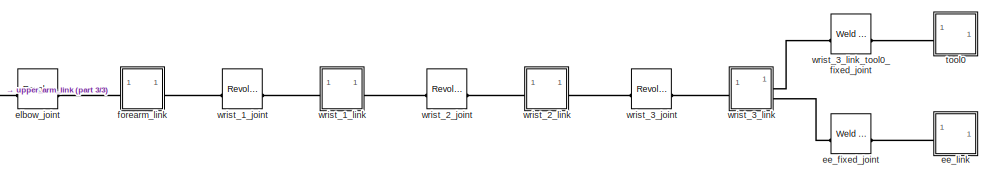
[diagram: root canvas - part 1/3, top center region]
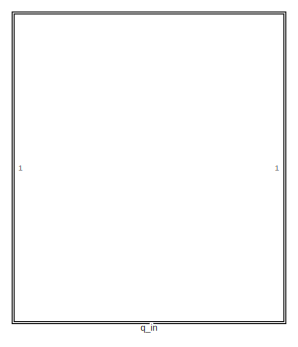
[diagram: root canvas - part 2/3, right side, full height]
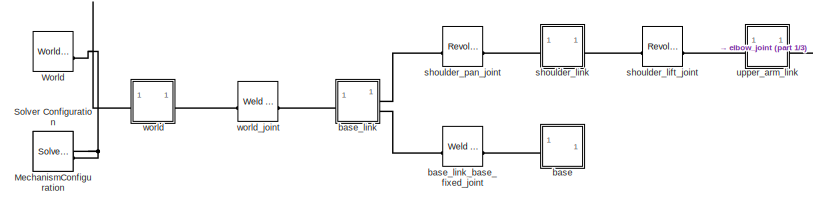
[diagram: root canvas - part 3/3, middle left region]
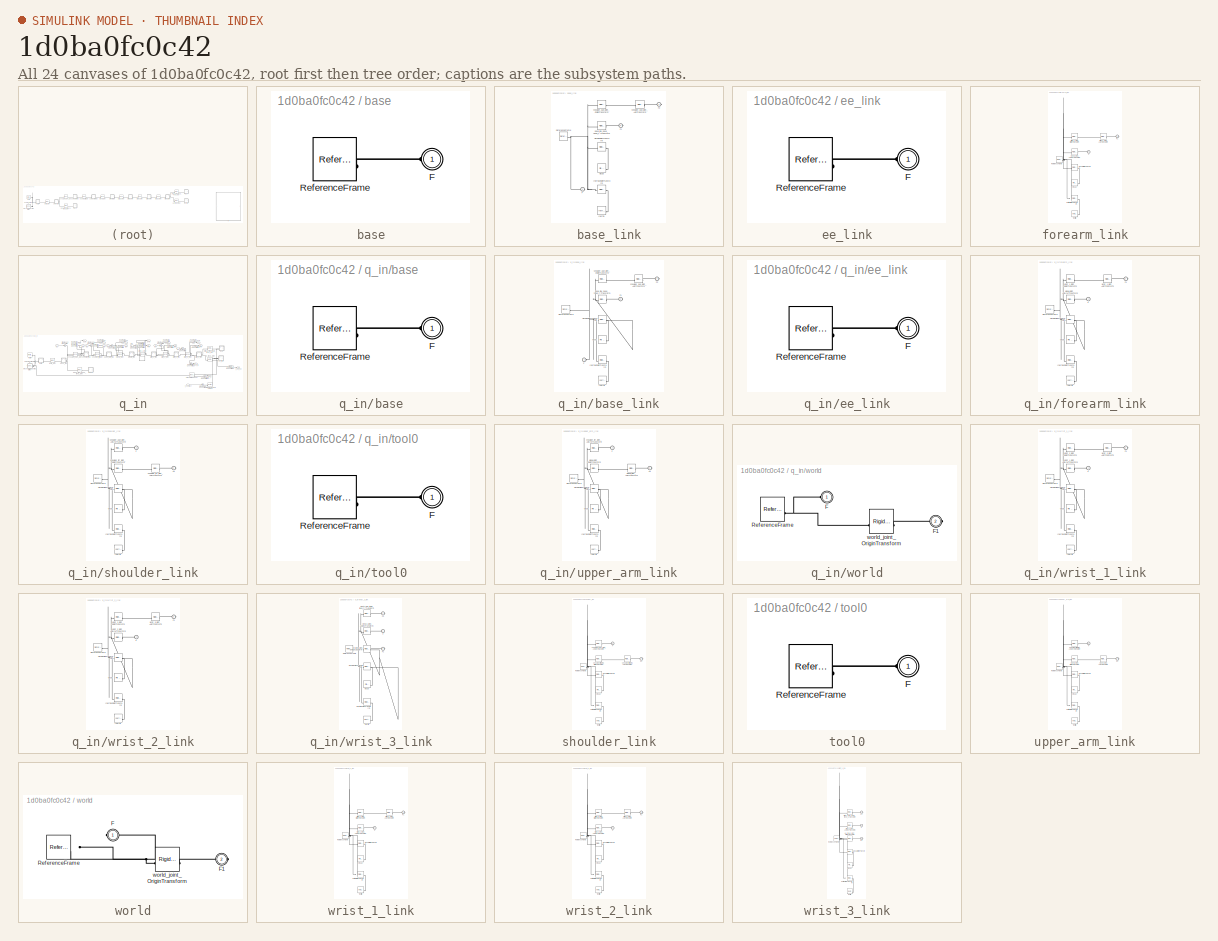
[diagram: thumbnail index - all 24 canvases of the model, root first then tree order]
MODEL slx_1d0ba0fc0c42
KIND model
CONFIG AbsTol = auto
CONFIG EnableMultiTasking = off
CONFIG FixedStep = auto
CONFIG MaxStep = auto
CONFIG MinStep = auto
CONFIG RelTol = 1e-3
CONFIG SampleTimeConstraint = Unconstrained
CONFIG SolverName = VariableStepAuto
CONFIG StartTime = 0.0
CONFIG StopTime = 10.0
BLOCK [Reference] MechanismConfiguration  REF=sm_lib/Utilities/Mechanism
Configuration
  SourceBlock = sm_lib/Utilities/Mechanism\nConfiguration
  SourceType = Mechanism\nConfiguration
BLOCK [Reference] Solver Configuration  REF=nesl_utility/Solver
Configuration
  SourceBlock = nesl_utility/Solver\nConfiguration
  SourceType = Solver\nConfiguration
BLOCK [Reference] World  REF=sm_lib/Frames and
Transforms/World Frame
  SourceBlock = sm_lib/Frames and\nTransforms/World Frame
  SourceType = World Frame
BLOCK [SubSystem] base
BLOCK [PMIOPort] base/F
  Side = Left
BLOCK [Reference] base/ReferenceFrame  REF=sm_lib/Frames and
Transforms/Reference
Frame
  SourceBlock = sm_lib/Frames and\nTransforms/Reference\nFrame
  SourceType = Reference\nFrame
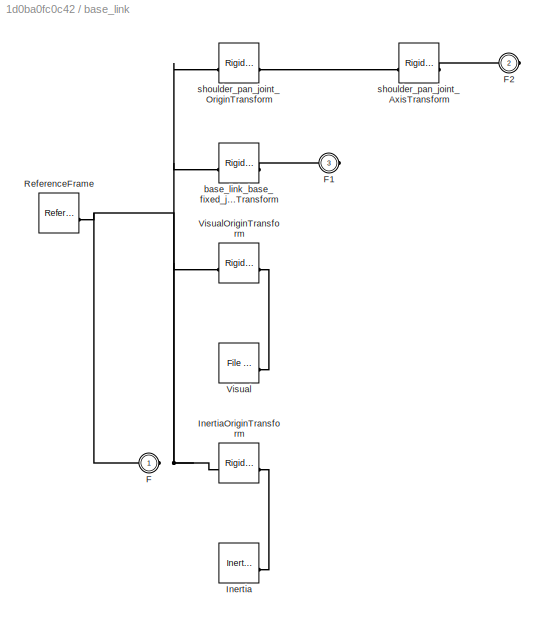
BLOCK [SubSystem] base_link
BLOCK [PMIOPort] base_link/F
  Side = Left
BLOCK [PMIOPort] base_link/F1
  Port = 3
  Side = Right
BLOCK [PMIOPort] base_link/F2
  Port = 2
  Side = Right
BLOCK [Reference] base_link/Inertia  REF=sm_lib/Body Elements/Inertia
  SourceBlock = sm_lib/Body Elements/Inertia
  SourceType = Inertia
BLOCK [Reference] base_link/InertiaOriginTransform  REF=sm_lib/Frames and
Transforms/Rigid
Transform
  SourceBlock = sm_lib/Frames and\nTransforms/Rigid\nTransform
  SourceType = Rigid\nTransform
BLOCK [Reference] base_link/ReferenceFrame  REF=sm_lib/Frames and
Transforms/Reference
Frame
  SourceBlock = sm_lib/Frames and\nTransforms/Reference\nFrame
  SourceType = Reference\nFrame
BLOCK [Reference] base_link/Visual  REF=sm_lib/Body Elements/File Solid
  SourceBlock = sm_lib/Body Elements/File Solid
  SourceType = File Solid
BLOCK [Reference] base_link/VisualOriginTransform  REF=sm_lib/Frames and
Transforms/Rigid
Transform
  SourceBlock = sm_lib/Frames and\nTransforms/Rigid\nTransform
  SourceType = Rigid\nTransform
BLOCK [Reference] base_link/base_link_base_fixed_joint_OriginTransform  REF=sm_lib/Frames and
Transforms/Rigid
Transform
  SourceBlock = sm_lib/Frames and\nTransforms/Rigid\nTransform
  SourceType = Rigid\nTransform
BLOCK [Reference] base_link/shoulder_pan_joint_AxisTransform  REF=sm_lib/Frames and
Transforms/Rigid
Transform
  SourceBlock = sm_lib/Frames and\nTransforms/Rigid\nTransform
  SourceType = Rigid\nTransform
BLOCK [Reference] base_link/shoulder_pan_joint_OriginTransform  REF=sm_lib/Frames and
Transforms/Rigid
Transform
  SourceBlock = sm_lib/Frames and\nTransforms/Rigid\nTransform
  SourceType = Rigid\nTransform
BLOCK [Reference] base_link_base_fixed_joint  REF=sm_lib/Joints/Weld Joint
  SourceBlock = sm_lib/Joints/Weld Joint
  SourceType = Weld Joint
BLOCK [Reference] ee_fixed_joint  REF=sm_lib/Joints/Weld Joint
  SourceBlock = sm_lib/Joints/Weld Joint
  SourceType = Weld Joint
BLOCK [SubSystem] ee_link
BLOCK [PMIOPort] ee_link/F
  Side = Left
BLOCK [Reference] ee_link/ReferenceFrame  REF=sm_lib/Frames and
Transforms/Reference
Frame
  SourceBlock = sm_lib/Frames and\nTransforms/Reference\nFrame
  SourceType = Reference\nFrame
BLOCK [Reference] elbow_joint  REF=sm_lib/Joints/Revolute Joint
  SourceBlock = sm_lib/Joints/Revolute Joint
  SourceType = Revolute Joint
BLOCK [SubSystem] forearm_link
BLOCK [PMIOPort] forearm_link/F
  Side = Left
BLOCK [PMIOPort] forearm_link/F1
  Port = 2
  Side = Right
BLOCK [Reference] forearm_link/Inertia  REF=sm_lib/Body Elements/Inertia
  SourceBlock = sm_lib/Body Elements/Inertia
  SourceType = Inertia
BLOCK [Reference] forearm_link/InertiaOriginTransform  REF=sm_lib/Frames and
Transforms/Rigid
Transform
  SourceBlock = sm_lib/Frames and\nTransforms/Rigid\nTransform
  SourceType = Rigid\nTransform
BLOCK [Reference] forearm_link/ReferenceFrame  REF=sm_lib/Frames and
Transforms/Reference
Frame
  SourceBlock = sm_lib/Frames and\nTransforms/Reference\nFrame
  SourceType = Reference\nFrame
BLOCK [Reference] forearm_link/Visual  REF=sm_lib/Body Elements/File Solid
  SourceBlock = sm_lib/Body Elements/File Solid
  SourceType = File Solid
BLOCK [Reference] forearm_link/VisualOriginTransform  REF=sm_lib/Frames and
Transforms/Rigid
Transform
  SourceBlock = sm_lib/Frames and\nTransforms/Rigid\nTransform
  SourceType = Rigid\nTransform
BLOCK [Reference] forearm_link/elbow_joint_AxisInvTransform  REF=sm_lib/Frames and
Transforms/Rigid
Transform
  SourceBlock = sm_lib/Frames and\nTransforms/Rigid\nTransform
  SourceType = Rigid\nTransform
BLOCK [Reference] forearm_link/wrist_1_joint_AxisTransform  REF=sm_lib/Frames and
Transforms/Rigid
Transform
  SourceBlock = sm_lib/Frames and\nTransforms/Rigid\nTransform
  SourceType = Rigid\nTransform
BLOCK [Reference] forearm_link/wrist_1_joint_OriginTransform  REF=sm_lib/Frames and
Transforms/Rigid
Transform
  SourceBlock = sm_lib/Frames and\nTransforms/Rigid\nTransform
  SourceType = Rigid\nTransform
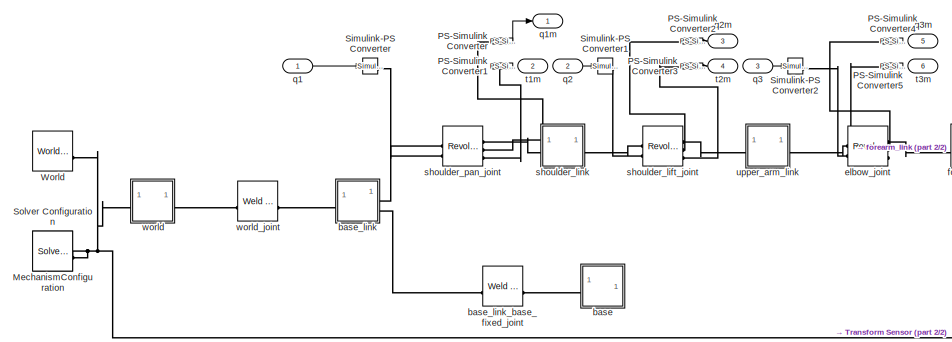
[diagram: q_in - part 1/2, middle left region]
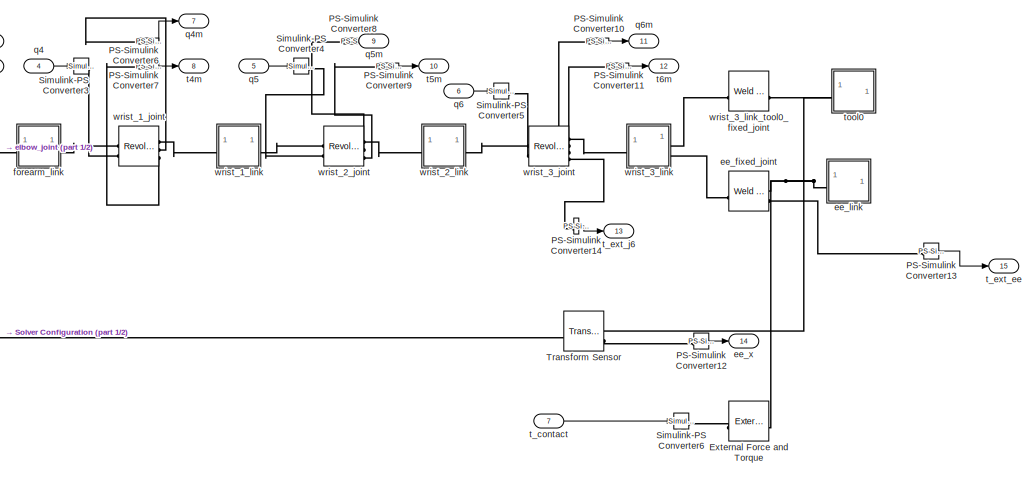
[diagram: q_in - part 2/2, right side, full height]
BLOCK [SubSystem] q_in
  Commented = on
  ShowPortLabels = SignalName
BLOCK [Reference] q_in/External Force and Torque  REF=sm_lib/Forces and
Torques/External Force
and Torque
  SourceBlock = sm_lib/Forces and\nTorques/External Force\nand Torque
  SourceType = External Force\nand Torque
BLOCK [Reference] q_in/MechanismConfiguration  REF=sm_lib/Utilities/Mechanism
Configuration
  SourceBlock = sm_lib/Utilities/Mechanism\nConfiguration
  SourceType = Mechanism\nConfiguration
BLOCK [Reference] q_in/PS-Simulink Converter  REF=nesl_utility/PS-Simulink
Converter
  SourceBlock = nesl_utility/PS-Simulink\nConverter
  SourceType = PS-Simulink\nConverter
BLOCK [Reference] q_in/PS-Simulink Converter1  REF=nesl_utility/PS-Simulink
Converter
  SourceBlock = nesl_utility/PS-Simulink\nConverter
  SourceType = PS-Simulink\nConverter
BLOCK [Reference] q_in/PS-Simulink Converter10  REF=nesl_utility/PS-Simulink
Converter
  SourceBlock = nesl_utility/PS-Simulink\nConverter
  SourceType = PS-Simulink\nConverter
BLOCK [Reference] q_in/PS-Simulink Converter11  REF=nesl_utility/PS-Simulink
Converter
  SourceBlock = nesl_utility/PS-Simulink\nConverter
  SourceType = PS-Simulink\nConverter
BLOCK [Reference] q_in/PS-Simulink Converter12  REF=nesl_utility/PS-Simulink
Converter
  SourceBlock = nesl_utility/PS-Simulink\nConverter
  SourceType = PS-Simulink\nConverter
BLOCK [Reference] q_in/PS-Simulink Converter13  REF=nesl_utility/PS-Simulink
Converter
  SourceBlock = nesl_utility/PS-Simulink\nConverter
  SourceType = PS-Simulink\nConverter
BLOCK [Reference] q_in/PS-Simulink Converter14  REF=nesl_utility/PS-Simulink
Converter
  SourceBlock = nesl_utility/PS-Simulink\nConverter
  SourceType = PS-Simulink\nConverter
BLOCK [Reference] q_in/PS-Simulink Converter2  REF=nesl_utility/PS-Simulink
Converter
  SourceBlock = nesl_utility/PS-Simulink\nConverter
  SourceType = PS-Simulink\nConverter
BLOCK [Reference] q_in/PS-Simulink Converter3  REF=nesl_utility/PS-Simulink
Converter
  SourceBlock = nesl_utility/PS-Simulink\nConverter
  SourceType = PS-Simulink\nConverter
BLOCK [Reference] q_in/PS-Simulink Converter4  REF=nesl_utility/PS-Simulink
Converter
  SourceBlock = nesl_utility/PS-Simulink\nConverter
  SourceType = PS-Simulink\nConverter
BLOCK [Reference] q_in/PS-Simulink Converter5  REF=nesl_utility/PS-Simulink
Converter
  SourceBlock = nesl_utility/PS-Simulink\nConverter
  SourceType = PS-Simulink\nConverter
BLOCK [Reference] q_in/PS-Simulink Converter6  REF=nesl_utility/PS-Simulink
Converter
  SourceBlock = nesl_utility/PS-Simulink\nConverter
  SourceType = PS-Simulink\nConverter
BLOCK [Reference] q_in/PS-Simulink Converter7  REF=nesl_utility/PS-Simulink
Converter
  SourceBlock = nesl_utility/PS-Simulink\nConverter
  SourceType = PS-Simulink\nConverter
BLOCK [Reference] q_in/PS-Simulink Converter8  REF=nesl_utility/PS-Simulink
Converter
  SourceBlock = nesl_utility/PS-Simulink\nConverter
  SourceType = PS-Simulink\nConverter
BLOCK [Reference] q_in/PS-Simulink Converter9  REF=nesl_utility/PS-Simulink
Converter
  SourceBlock = nesl_utility/PS-Simulink\nConverter
  SourceType = PS-Simulink\nConverter
BLOCK [Reference] q_in/Simulink-PS Converter  REF=nesl_utility/Simulink-PS
Converter
  SourceBlock = nesl_utility/Simulink-PS\nConverter
  SourceType = Simulink-PS\nConverter
BLOCK [Reference] q_in/Simulink-PS Converter1  REF=nesl_utility/Simulink-PS
Converter
  SourceBlock = nesl_utility/Simulink-PS\nConverter
  SourceType = Simulink-PS\nConverter
BLOCK [Reference] q_in/Simulink-PS Converter2  REF=nesl_utility/Simulink-PS
Converter
  SourceBlock = nesl_utility/Simulink-PS\nConverter
  SourceType = Simulink-PS\nConverter
BLOCK [Reference] q_in/Simulink-PS Converter3  REF=nesl_utility/Simulink-PS
Converter
  SourceBlock = nesl_utility/Simulink-PS\nConverter
  SourceType = Simulink-PS\nConverter
BLOCK [Reference] q_in/Simulink-PS Converter4  REF=nesl_utility/Simulink-PS
Converter
  SourceBlock = nesl_utility/Simulink-PS\nConverter
  SourceType = Simulink-PS\nConverter
BLOCK [Reference] q_in/Simulink-PS Converter5  REF=nesl_utility/Simulink-PS
Converter
  SourceBlock = nesl_utility/Simulink-PS\nConverter
  SourceType = Simulink-PS\nConverter
BLOCK [Reference] q_in/Simulink-PS Converter6  REF=nesl_utility/Simulink-PS
Converter
  SourceBlock = nesl_utility/Simulink-PS\nConverter
  SourceType = Simulink-PS\nConverter
BLOCK [Reference] q_in/Solver Configuration  REF=nesl_utility/Solver
Configuration
  SourceBlock = nesl_utility/Solver\nConfiguration
  SourceType = Solver\nConfiguration
BLOCK [Reference] q_in/Transform Sensor  REF=sm_lib/Frames and
Transforms/Transform
Sensor
  SourceBlock = sm_lib/Frames and\nTransforms/Transform\nSensor
  SourceType = Transform\nSensor
BLOCK [Reference] q_in/World  REF=sm_lib/Frames and
Transforms/World Frame
  SourceBlock = sm_lib/Frames and\nTransforms/World Frame
  SourceType = World Frame
BLOCK [SubSystem] q_in/base
BLOCK [PMIOPort] q_in/base/F
  Side = Left
BLOCK [Reference] q_in/base/ReferenceFrame  REF=sm_lib/Frames and
Transforms/Reference
Frame
  SourceBlock = sm_lib/Frames and\nTransforms/Reference\nFrame
  SourceType = Reference\nFrame
BLOCK [SubSystem] q_in/base_link
BLOCK [PMIOPort] q_in/base_link/F
  Side = Left
BLOCK [PMIOPort] q_in/base_link/F1
  Port = 3
  Side = Right
BLOCK [PMIOPort] q_in/base_link/F2
  Port = 2
  Side = Right
BLOCK [Reference] q_in/base_link/Inertia  REF=sm_lib/Body Elements/Inertia
  SourceBlock = sm_lib/Body Elements/Inertia
  SourceType = Inertia
BLOCK [Reference] q_in/base_link/InertiaOriginTransform  REF=sm_lib/Frames and
Transforms/Rigid
Transform
  SourceBlock = sm_lib/Frames and\nTransforms/Rigid\nTransform
  SourceType = Rigid\nTransform
BLOCK [Reference] q_in/base_link/ReferenceFrame  REF=sm_lib/Frames and
Transforms/Reference
Frame
  SourceBlock = sm_lib/Frames and\nTransforms/Reference\nFrame
  SourceType = Reference\nFrame
BLOCK [Reference] q_in/base_link/Visual  REF=sm_lib/Body Elements/File Solid
  SourceBlock = sm_lib/Body Elements/File Solid
  SourceType = File Solid
BLOCK [Reference] q_in/base_link/VisualOriginTransform  REF=sm_lib/Frames and
Transforms/Rigid
Transform
  SourceBlock = sm_lib/Frames and\nTransforms/Rigid\nTransform
  SourceType = Rigid\nTransform
BLOCK [Reference] q_in/base_link/base_link_base_fixed_joint_OriginTransform  REF=sm_lib/Frames and
Transforms/Rigid
Transform
  SourceBlock = sm_lib/Frames and\nTransforms/Rigid\nTransform
  SourceType = Rigid\nTransform
BLOCK [Reference] q_in/base_link/shoulder_pan_joint_AxisTransform  REF=sm_lib/Frames and
Transforms/Rigid
Transform
  SourceBlock = sm_lib/Frames and\nTransforms/Rigid\nTransform
  SourceType = Rigid\nTransform
BLOCK [Reference] q_in/base_link/shoulder_pan_joint_OriginTransform  REF=sm_lib/Frames and
Transforms/Rigid
Transform
  SourceBlock = sm_lib/Frames and\nTransforms/Rigid\nTransform
  SourceType = Rigid\nTransform
BLOCK [Reference] q_in/base_link_base_fixed_joint  REF=sm_lib/Joints/Weld Joint
  SourceBlock = sm_lib/Joints/Weld Joint
  SourceType = Weld Joint
BLOCK [Reference] q_in/ee_fixed_joint  REF=sm_lib/Joints/Weld Joint
  SourceBlock = sm_lib/Joints/Weld Joint
  SourceType = Weld Joint
BLOCK [SubSystem] q_in/ee_link
BLOCK [PMIOPort] q_in/ee_link/F
  Side = Left
BLOCK [Reference] q_in/ee_link/ReferenceFrame  REF=sm_lib/Frames and
Transforms/Reference
Frame
  SourceBlock = sm_lib/Frames and\nTransforms/Reference\nFrame
  SourceType = Reference\nFrame
BLOCK [Outport] q_in/ee_x
  Port = 14
BLOCK [Reference] q_in/elbow_joint  REF=sm_lib/Joints/Revolute Joint
  SourceBlock = sm_lib/Joints/Revolute Joint
  SourceType = Revolute Joint
BLOCK [SubSystem] q_in/forearm_link
BLOCK [PMIOPort] q_in/forearm_link/F
  Side = Left
BLOCK [PMIOPort] q_in/forearm_link/F1
  Port = 2
  Side = Right
BLOCK [Reference] q_in/forearm_link/Inertia  REF=sm_lib/Body Elements/Inertia
  SourceBlock = sm_lib/Body Elements/Inertia
  SourceType = Inertia
BLOCK [Reference] q_in/forearm_link/InertiaOriginTransform  REF=sm_lib/Frames and
Transforms/Rigid
Transform
  SourceBlock = sm_lib/Frames and\nTransforms/Rigid\nTransform
  SourceType = Rigid\nTransform
BLOCK [Reference] q_in/forearm_link/ReferenceFrame  REF=sm_lib/Frames and
Transforms/Reference
Frame
  SourceBlock = sm_lib/Frames and\nTransforms/Reference\nFrame
  SourceType = Reference\nFrame
BLOCK [Reference] q_in/forearm_link/Visual  REF=sm_lib/Body Elements/File Solid
  SourceBlock = sm_lib/Body Elements/File Solid
  SourceType = File Solid
BLOCK [Reference] q_in/forearm_link/VisualOriginTransform  REF=sm_lib/Frames and
Transforms/Rigid
Transform
  SourceBlock = sm_lib/Frames and\nTransforms/Rigid\nTransform
  SourceType = Rigid\nTransform
BLOCK [Reference] q_in/forearm_link/elbow_joint_AxisInvTransform  REF=sm_lib/Frames and
Transforms/Rigid
Transform
  SourceBlock = sm_lib/Frames and\nTransforms/Rigid\nTransform
  SourceType = Rigid\nTransform
BLOCK [Reference] q_in/forearm_link/wrist_1_joint_AxisTransform  REF=sm_lib/Frames and
Transforms/Rigid
Transform
  SourceBlock = sm_lib/Frames and\nTransforms/Rigid\nTransform
  SourceType = Rigid\nTransform
BLOCK [Reference] q_in/forearm_link/wrist_1_joint_OriginTransform  REF=sm_lib/Frames and
Transforms/Rigid
Transform
  SourceBlock = sm_lib/Frames and\nTransforms/Rigid\nTransform
  SourceType = Rigid\nTransform
BLOCK [Inport] q_in/q1
BLOCK [Outport] q_in/q1m
BLOCK [Inport] q_in/q2
  Port = 2
BLOCK [Outport] q_in/q2m
  Port = 3
BLOCK [Inport] q_in/q3
  Port = 3
BLOCK [Outport] q_in/q3m
  Port = 5
BLOCK [Inport] q_in/q4
  Port = 4
BLOCK [Outport] q_in/q4m
  Port = 7
BLOCK [Inport] q_in/q5
  Port = 5
BLOCK [Outport] q_in/q5m
  Port = 9
BLOCK [Inport] q_in/q6
  Port = 6
BLOCK [Outport] q_in/q6m
  Port = 11
BLOCK [Reference] q_in/shoulder_lift_joint  REF=sm_lib/Joints/Revolute Joint
  SourceBlock = sm_lib/Joints/Revolute Joint
  SourceType = Revolute Joint
BLOCK [SubSystem] q_in/shoulder_link
BLOCK [PMIOPort] q_in/shoulder_link/F
  Side = Left
BLOCK [PMIOPort] q_in/shoulder_link/F1
  Port = 2
  Side = Right
BLOCK [Reference] q_in/shoulder_link/Inertia  REF=sm_lib/Body Elements/Inertia
  SourceBlock = sm_lib/Body Elements/Inertia
  SourceType = Inertia
BLOCK [Reference] q_in/shoulder_link/InertiaOriginTransform  REF=sm_lib/Frames and
Transforms/Rigid
Transform
  SourceBlock = sm_lib/Frames and\nTransforms/Rigid\nTransform
  SourceType = Rigid\nTransform
BLOCK [Reference] q_in/shoulder_link/ReferenceFrame  REF=sm_lib/Frames and
Transforms/Reference
Frame
  SourceBlock = sm_lib/Frames and\nTransforms/Reference\nFrame
  SourceType = Reference\nFrame
BLOCK [Reference] q_in/shoulder_link/Visual  REF=sm_lib/Body Elements/File Solid
  SourceBlock = sm_lib/Body Elements/File Solid
  SourceType = File Solid
BLOCK [Reference] q_in/shoulder_link/VisualOriginTransform  REF=sm_lib/Frames and
Transforms/Rigid
Transform
  SourceBlock = sm_lib/Frames and\nTransforms/Rigid\nTransform
  SourceType = Rigid\nTransform
BLOCK [Reference] q_in/shoulder_link/shoulder_lift_joint_AxisTransform  REF=sm_lib/Frames and
Transforms/Rigid
Transform
  SourceBlock = sm_lib/Frames and\nTransforms/Rigid\nTransform
  SourceType = Rigid\nTransform
BLOCK [Reference] q_in/shoulder_link/shoulder_lift_joint_OriginTransform  REF=sm_lib/Frames and
Transforms/Rigid
Transform
  SourceBlock = sm_lib/Frames and\nTransforms/Rigid\nTransform
  SourceType = Rigid\nTransform
BLOCK [Reference] q_in/shoulder_link/shoulder_pan_joint_AxisInvTransform  REF=sm_lib/Frames and
Transforms/Rigid
Transform
  SourceBlock = sm_lib/Frames and\nTransforms/Rigid\nTransform
  SourceType = Rigid\nTransform
BLOCK [Reference] q_in/shoulder_pan_joint  REF=sm_lib/Joints/Revolute Joint
  SourceBlock = sm_lib/Joints/Revolute Joint
  SourceType = Revolute Joint
BLOCK [Outport] q_in/t1m
  Port = 2
BLOCK [Outport] q_in/t2m
  Port = 4
BLOCK [Outport] q_in/t3m
  Port = 6
BLOCK [Outport] q_in/t4m
  Port = 8
BLOCK [Outport] q_in/t5m
  Port = 10
BLOCK [Outport] q_in/t6m
  Port = 12
BLOCK [Inport] q_in/t_contact
  Port = 7
BLOCK [Outport] q_in/t_ext_ee
  Port = 15
BLOCK [Outport] q_in/t_ext_j6
  Port = 13
BLOCK [SubSystem] q_in/tool0
BLOCK [PMIOPort] q_in/tool0/F
  Side = Left
BLOCK [Reference] q_in/tool0/ReferenceFrame  REF=sm_lib/Frames and
Transforms/Reference
Frame
  SourceBlock = sm_lib/Frames and\nTransforms/Reference\nFrame
  SourceType = Reference\nFrame
BLOCK [SubSystem] q_in/upper_arm_link
BLOCK [PMIOPort] q_in/upper_arm_link/F
  Side = Left
BLOCK [PMIOPort] q_in/upper_arm_link/F1
  Port = 2
  Side = Right
BLOCK [Reference] q_in/upper_arm_link/Inertia  REF=sm_lib/Body Elements/Inertia
  SourceBlock = sm_lib/Body Elements/Inertia
  SourceType = Inertia
BLOCK [Reference] q_in/upper_arm_link/InertiaOriginTransform  REF=sm_lib/Frames and
Transforms/Rigid
Transform
  SourceBlock = sm_lib/Frames and\nTransforms/Rigid\nTransform
  SourceType = Rigid\nTransform
BLOCK [Reference] q_in/upper_arm_link/ReferenceFrame  REF=sm_lib/Frames and
Transforms/Reference
Frame
  SourceBlock = sm_lib/Frames and\nTransforms/Reference\nFrame
  SourceType = Reference\nFrame
BLOCK [Reference] q_in/upper_arm_link/Visual  REF=sm_lib/Body Elements/File Solid
  SourceBlock = sm_lib/Body Elements/File Solid
  SourceType = File Solid
BLOCK [Reference] q_in/upper_arm_link/VisualOriginTransform  REF=sm_lib/Frames and
Transforms/Rigid
Transform
  SourceBlock = sm_lib/Frames and\nTransforms/Rigid\nTransform
  SourceType = Rigid\nTransform
BLOCK [Reference] q_in/upper_arm_link/elbow_joint_AxisTransform  REF=sm_lib/Frames and
Transforms/Rigid
Transform
  SourceBlock = sm_lib/Frames and\nTransforms/Rigid\nTransform
  SourceType = Rigid\nTransform
BLOCK [Reference] q_in/upper_arm_link/elbow_joint_OriginTransform  REF=sm_lib/Frames and
Transforms/Rigid
Transform
  SourceBlock = sm_lib/Frames and\nTransforms/Rigid\nTransform
  SourceType = Rigid\nTransform
BLOCK [Reference] q_in/upper_arm_link/shoulder_lift_joint_AxisInvTransform  REF=sm_lib/Frames and
Transforms/Rigid
Transform
  SourceBlock = sm_lib/Frames and\nTransforms/Rigid\nTransform
  SourceType = Rigid\nTransform
BLOCK [SubSystem] q_in/world
BLOCK [PMIOPort] q_in/world/F
  Side = Left
BLOCK [PMIOPort] q_in/world/F1
  Port = 2
  Side = Right
BLOCK [Reference] q_in/world/ReferenceFrame  REF=sm_lib/Frames and
Transforms/Reference
Frame
  SourceBlock = sm_lib/Frames and\nTransforms/Reference\nFrame
  SourceType = Reference\nFrame
BLOCK [Reference] q_in/world/world_joint_OriginTransform  REF=sm_lib/Frames and
Transforms/Rigid
Transform
  SourceBlock = sm_lib/Frames and\nTransforms/Rigid\nTransform
  SourceType = Rigid\nTransform
BLOCK [Reference] q_in/world_joint  REF=sm_lib/Joints/Weld Joint
  SourceBlock = sm_lib/Joints/Weld Joint
  SourceType = Weld Joint
BLOCK [Reference] q_in/wrist_1_joint  REF=sm_lib/Joints/Revolute Joint
  SourceBlock = sm_lib/Joints/Revolute Joint
  SourceType = Revolute Joint
BLOCK [SubSystem] q_in/wrist_1_link
BLOCK [PMIOPort] q_in/wrist_1_link/F
  Side = Left
BLOCK [PMIOPort] q_in/wrist_1_link/F1
  Port = 2
  Side = Right
BLOCK [Reference] q_in/wrist_1_link/Inertia  REF=sm_lib/Body Elements/Inertia
  SourceBlock = sm_lib/Body Elements/Inertia
  SourceType = Inertia
BLOCK [Reference] q_in/wrist_1_link/InertiaOriginTransform  REF=sm_lib/Frames and
Transforms/Rigid
Transform
  SourceBlock = sm_lib/Frames and\nTransforms/Rigid\nTransform
  SourceType = Rigid\nTransform
BLOCK [Reference] q_in/wrist_1_link/ReferenceFrame  REF=sm_lib/Frames and
Transforms/Reference
Frame
  SourceBlock = sm_lib/Frames and\nTransforms/Reference\nFrame
  SourceType = Reference\nFrame
BLOCK [Reference] q_in/wrist_1_link/Visual  REF=sm_lib/Body Elements/File Solid
  SourceBlock = sm_lib/Body Elements/File Solid
  SourceType = File Solid
BLOCK [Reference] q_in/wrist_1_link/VisualOriginTransform  REF=sm_lib/Frames and
Transforms/Rigid
Transform
  SourceBlock = sm_lib/Frames and\nTransforms/Rigid\nTransform
  SourceType = Rigid\nTransform
BLOCK [Reference] q_in/wrist_1_link/wrist_1_joint_AxisInvTransform  REF=sm_lib/Frames and
Transforms/Rigid
Transform
  SourceBlock = sm_lib/Frames and\nTransforms/Rigid\nTransform
  SourceType = Rigid\nTransform
BLOCK [Reference] q_in/wrist_1_link/wrist_2_joint_AxisTransform  REF=sm_lib/Frames and
Transforms/Rigid
Transform
  SourceBlock = sm_lib/Frames and\nTransforms/Rigid\nTransform
  SourceType = Rigid\nTransform
BLOCK [Reference] q_in/wrist_1_link/wrist_2_joint_OriginTransform  REF=sm_lib/Frames and
Transforms/Rigid
Transform
  SourceBlock = sm_lib/Frames and\nTransforms/Rigid\nTransform
  SourceType = Rigid\nTransform
BLOCK [Reference] q_in/wrist_2_joint  REF=sm_lib/Joints/Revolute Joint
  SourceBlock = sm_lib/Joints/Revolute Joint
  SourceType = Revolute Joint
BLOCK [SubSystem] q_in/wrist_2_link
BLOCK [PMIOPort] q_in/wrist_2_link/F
  Side = Left
BLOCK [PMIOPort] q_in/wrist_2_link/F1
  Port = 2
  Side = Right
BLOCK [Reference] q_in/wrist_2_link/Inertia  REF=sm_lib/Body Elements/Inertia
  SourceBlock = sm_lib/Body Elements/Inertia
  SourceType = Inertia
BLOCK [Reference] q_in/wrist_2_link/InertiaOriginTransform  REF=sm_lib/Frames and
Transforms/Rigid
Transform
  SourceBlock = sm_lib/Frames and\nTransforms/Rigid\nTransform
  SourceType = Rigid\nTransform
BLOCK [Reference] q_in/wrist_2_link/ReferenceFrame  REF=sm_lib/Frames and
Transforms/Reference
Frame
  SourceBlock = sm_lib/Frames and\nTransforms/Reference\nFrame
  SourceType = Reference\nFrame
BLOCK [Reference] q_in/wrist_2_link/Visual  REF=sm_lib/Body Elements/File Solid
  SourceBlock = sm_lib/Body Elements/File Solid
  SourceType = File Solid
BLOCK [Reference] q_in/wrist_2_link/VisualOriginTransform  REF=sm_lib/Frames and
Transforms/Rigid
Transform
  SourceBlock = sm_lib/Frames and\nTransforms/Rigid\nTransform
  SourceType = Rigid\nTransform
BLOCK [Reference] q_in/wrist_2_link/wrist_2_joint_AxisInvTransform  REF=sm_lib/Frames and
Transforms/Rigid
Transform
  SourceBlock = sm_lib/Frames and\nTransforms/Rigid\nTransform
  SourceType = Rigid\nTransform
BLOCK [Reference] q_in/wrist_2_link/wrist_3_joint_AxisTransform  REF=sm_lib/Frames and
Transforms/Rigid
Transform
  SourceBlock = sm_lib/Frames and\nTransforms/Rigid\nTransform
  SourceType = Rigid\nTransform
BLOCK [Reference] q_in/wrist_2_link/wrist_3_joint_OriginTransform  REF=sm_lib/Frames and
Transforms/Rigid
Transform
  SourceBlock = sm_lib/Frames and\nTransforms/Rigid\nTransform
  SourceType = Rigid\nTransform
BLOCK [Reference] q_in/wrist_3_joint  REF=sm_lib/Joints/Revolute Joint
  SourceBlock = sm_lib/Joints/Revolute Joint
  SourceType = Revolute Joint
BLOCK [SubSystem] q_in/wrist_3_link
BLOCK [PMIOPort] q_in/wrist_3_link/F
  Side = Left
BLOCK [PMIOPort] q_in/wrist_3_link/F1
  Port = 3
  Side = Right
BLOCK [PMIOPort] q_in/wrist_3_link/F2
  Port = 2
  Side = Right
BLOCK [Reference] q_in/wrist_3_link/Inertia  REF=sm_lib/Body Elements/Inertia
  SourceBlock = sm_lib/Body Elements/Inertia
  SourceType = Inertia
BLOCK [Reference] q_in/wrist_3_link/InertiaOriginTransform  REF=sm_lib/Frames and
Transforms/Rigid
Transform
  SourceBlock = sm_lib/Frames and\nTransforms/Rigid\nTransform
  SourceType = Rigid\nTransform
BLOCK [Reference] q_in/wrist_3_link/ReferenceFrame  REF=sm_lib/Frames and
Transforms/Reference
Frame
  SourceBlock = sm_lib/Frames and\nTransforms/Reference\nFrame
  SourceType = Reference\nFrame
BLOCK [Reference] q_in/wrist_3_link/Visual  REF=sm_lib/Body Elements/File Solid
  SourceBlock = sm_lib/Body Elements/File Solid
  SourceType = File Solid
BLOCK [Reference] q_in/wrist_3_link/VisualOriginTransform  REF=sm_lib/Frames and
Transforms/Rigid
Transform
  SourceBlock = sm_lib/Frames and\nTransforms/Rigid\nTransform
  SourceType = Rigid\nTransform
BLOCK [Reference] q_in/wrist_3_link/ee_fixed_joint_OriginTransform  REF=sm_lib/Frames and
Transforms/Rigid
Transform
  SourceBlock = sm_lib/Frames and\nTransforms/Rigid\nTransform
  SourceType = Rigid\nTransform
BLOCK [Reference] q_in/wrist_3_link/wrist_3_joint_AxisInvTransform  REF=sm_lib/Frames and
Transforms/Rigid
Transform
  SourceBlock = sm_lib/Frames and\nTransforms/Rigid\nTransform
  SourceType = Rigid\nTransform
BLOCK [Reference] q_in/wrist_3_link/wrist_3_link_tool0_fixed_joint_OriginTransform  REF=sm_lib/Frames and
Transforms/Rigid
Transform
  SourceBlock = sm_lib/Frames and\nTransforms/Rigid\nTransform
  SourceType = Rigid\nTransform
BLOCK [Reference] q_in/wrist_3_link_tool0_fixed_joint  REF=sm_lib/Joints/Weld Joint
  SourceBlock = sm_lib/Joints/Weld Joint
  SourceType = Weld Joint
BLOCK [Reference] shoulder_lift_joint  REF=sm_lib/Joints/Revolute Joint
  SourceBlock = sm_lib/Joints/Revolute Joint
  SourceType = Revolute Joint
BLOCK [SubSystem] shoulder_link
BLOCK [PMIOPort] shoulder_link/F
  Side = Left
BLOCK [PMIOPort] shoulder_link/F1
  Port = 2
  Side = Right
BLOCK [Reference] shoulder_link/Inertia  REF=sm_lib/Body Elements/Inertia
  SourceBlock = sm_lib/Body Elements/Inertia
  SourceType = Inertia
BLOCK [Reference] shoulder_link/InertiaOriginTransform  REF=sm_lib/Frames and
Transforms/Rigid
Transform
  SourceBlock = sm_lib/Frames and\nTransforms/Rigid\nTransform
  SourceType = Rigid\nTransform
BLOCK [Reference] shoulder_link/ReferenceFrame  REF=sm_lib/Frames and
Transforms/Reference
Frame
  SourceBlock = sm_lib/Frames and\nTransforms/Reference\nFrame
  SourceType = Reference\nFrame
BLOCK [Reference] shoulder_link/Visual  REF=sm_lib/Body Elements/File Solid
  SourceBlock = sm_lib/Body Elements/File Solid
  SourceType = File Solid
BLOCK [Reference] shoulder_link/VisualOriginTransform  REF=sm_lib/Frames and
Transforms/Rigid
Transform
  SourceBlock = sm_lib/Frames and\nTransforms/Rigid\nTransform
  SourceType = Rigid\nTransform
BLOCK [Reference] shoulder_link/shoulder_lift_joint_AxisTransform  REF=sm_lib/Frames and
Transforms/Rigid
Transform
  SourceBlock = sm_lib/Frames and\nTransforms/Rigid\nTransform
  SourceType = Rigid\nTransform
BLOCK [Reference] shoulder_link/shoulder_lift_joint_OriginTransform  REF=sm_lib/Frames and
Transforms/Rigid
Transform
  SourceBlock = sm_lib/Frames and\nTransforms/Rigid\nTransform
  SourceType = Rigid\nTransform
BLOCK [Reference] shoulder_link/shoulder_pan_joint_AxisInvTransform  REF=sm_lib/Frames and
Transforms/Rigid
Transform
  SourceBlock = sm_lib/Frames and\nTransforms/Rigid\nTransform
  SourceType = Rigid\nTransform
BLOCK [Reference] shoulder_pan_joint  REF=sm_lib/Joints/Revolute Joint
  SourceBlock = sm_lib/Joints/Revolute Joint
  SourceType = Revolute Joint
BLOCK [SubSystem] tool0
BLOCK [PMIOPort] tool0/F
  Side = Left
BLOCK [Reference] tool0/ReferenceFrame  REF=sm_lib/Frames and
Transforms/Reference
Frame
  SourceBlock = sm_lib/Frames and\nTransforms/Reference\nFrame
  SourceType = Reference\nFrame
BLOCK [SubSystem] upper_arm_link
BLOCK [PMIOPort] upper_arm_link/F
  Side = Left
BLOCK [PMIOPort] upper_arm_link/F1
  Port = 2
  Side = Right
BLOCK [Reference] upper_arm_link/Inertia  REF=sm_lib/Body Elements/Inertia
  SourceBlock = sm_lib/Body Elements/Inertia
  SourceType = Inertia
BLOCK [Reference] upper_arm_link/InertiaOriginTransform  REF=sm_lib/Frames and
Transforms/Rigid
Transform
  SourceBlock = sm_lib/Frames and\nTransforms/Rigid\nTransform
  SourceType = Rigid\nTransform
BLOCK [Reference] upper_arm_link/ReferenceFrame  REF=sm_lib/Frames and
Transforms/Reference
Frame
  SourceBlock = sm_lib/Frames and\nTransforms/Reference\nFrame
  SourceType = Reference\nFrame
BLOCK [Reference] upper_arm_link/Visual  REF=sm_lib/Body Elements/File Solid
  SourceBlock = sm_lib/Body Elements/File Solid
  SourceType = File Solid
BLOCK [Reference] upper_arm_link/VisualOriginTransform  REF=sm_lib/Frames and
Transforms/Rigid
Transform
  SourceBlock = sm_lib/Frames and\nTransforms/Rigid\nTransform
  SourceType = Rigid\nTransform
BLOCK [Reference] upper_arm_link/elbow_joint_AxisTransform  REF=sm_lib/Frames and
Transforms/Rigid
Transform
  SourceBlock = sm_lib/Frames and\nTransforms/Rigid\nTransform
  SourceType = Rigid\nTransform
BLOCK [Reference] upper_arm_link/elbow_joint_OriginTransform  REF=sm_lib/Frames and
Transforms/Rigid
Transform
  SourceBlock = sm_lib/Frames and\nTransforms/Rigid\nTransform
  SourceType = Rigid\nTransform
BLOCK [Reference] upper_arm_link/shoulder_lift_joint_AxisInvTransform  REF=sm_lib/Frames and
Transforms/Rigid
Transform
  SourceBlock = sm_lib/Frames and\nTransforms/Rigid\nTransform
  SourceType = Rigid\nTransform
BLOCK [SubSystem] world
BLOCK [PMIOPort] world/F
  Side = Left
BLOCK [PMIOPort] world/F1
  Port = 2
  Side = Right
BLOCK [Reference] world/ReferenceFrame  REF=sm_lib/Frames and
Transforms/Reference
Frame
  SourceBlock = sm_lib/Frames and\nTransforms/Reference\nFrame
  SourceType = Reference\nFrame
BLOCK [Reference] world/world_joint_OriginTransform  REF=sm_lib/Frames and
Transforms/Rigid
Transform
  SourceBlock = sm_lib/Frames and\nTransforms/Rigid\nTransform
  SourceType = Rigid\nTransform
BLOCK [Reference] world_joint  REF=sm_lib/Joints/Weld Joint
  SourceBlock = sm_lib/Joints/Weld Joint
  SourceType = Weld Joint
BLOCK [Reference] wrist_1_joint  REF=sm_lib/Joints/Revolute Joint
  SourceBlock = sm_lib/Joints/Revolute Joint
  SourceType = Revolute Joint
BLOCK [SubSystem] wrist_1_link
BLOCK [PMIOPort] wrist_1_link/F
  Side = Left
BLOCK [PMIOPort] wrist_1_link/F1
  Port = 2
  Side = Right
BLOCK [Reference] wrist_1_link/Inertia  REF=sm_lib/Body Elements/Inertia
  SourceBlock = sm_lib/Body Elements/Inertia
  SourceType = Inertia
BLOCK [Reference] wrist_1_link/InertiaOriginTransform  REF=sm_lib/Frames and
Transforms/Rigid
Transform
  SourceBlock = sm_lib/Frames and\nTransforms/Rigid\nTransform
  SourceType = Rigid\nTransform
BLOCK [Reference] wrist_1_link/ReferenceFrame  REF=sm_lib/Frames and
Transforms/Reference
Frame
  SourceBlock = sm_lib/Frames and\nTransforms/Reference\nFrame
  SourceType = Reference\nFrame
BLOCK [Reference] wrist_1_link/Visual  REF=sm_lib/Body Elements/File Solid
  SourceBlock = sm_lib/Body Elements/File Solid
  SourceType = File Solid
BLOCK [Reference] wrist_1_link/VisualOriginTransform  REF=sm_lib/Frames and
Transforms/Rigid
Transform
  SourceBlock = sm_lib/Frames and\nTransforms/Rigid\nTransform
  SourceType = Rigid\nTransform
BLOCK [Reference] wrist_1_link/wrist_1_joint_AxisInvTransform  REF=sm_lib/Frames and
Transforms/Rigid
Transform
  SourceBlock = sm_lib/Frames and\nTransforms/Rigid\nTransform
  SourceType = Rigid\nTransform
BLOCK [Reference] wrist_1_link/wrist_2_joint_AxisTransform  REF=sm_lib/Frames and
Transforms/Rigid
Transform
  SourceBlock = sm_lib/Frames and\nTransforms/Rigid\nTransform
  SourceType = Rigid\nTransform
BLOCK [Reference] wrist_1_link/wrist_2_joint_OriginTransform  REF=sm_lib/Frames and
Transforms/Rigid
Transform
  SourceBlock = sm_lib/Frames and\nTransforms/Rigid\nTransform
  SourceType = Rigid\nTransform
BLOCK [Reference] wrist_2_joint  REF=sm_lib/Joints/Revolute Joint
  SourceBlock = sm_lib/Joints/Revolute Joint
  SourceType = Revolute Joint
BLOCK [SubSystem] wrist_2_link
BLOCK [PMIOPort] wrist_2_link/F
  Side = Left
BLOCK [PMIOPort] wrist_2_link/F1
  Port = 2
  Side = Right
BLOCK [Reference] wrist_2_link/Inertia  REF=sm_lib/Body Elements/Inertia
  SourceBlock = sm_lib/Body Elements/Inertia
  SourceType = Inertia
BLOCK [Reference] wrist_2_link/InertiaOriginTransform  REF=sm_lib/Frames and
Transforms/Rigid
Transform
  SourceBlock = sm_lib/Frames and\nTransforms/Rigid\nTransform
  SourceType = Rigid\nTransform
BLOCK [Reference] wrist_2_link/ReferenceFrame  REF=sm_lib/Frames and
Transforms/Reference
Frame
  SourceBlock = sm_lib/Frames and\nTransforms/Reference\nFrame
  SourceType = Reference\nFrame
BLOCK [Reference] wrist_2_link/Visual  REF=sm_lib/Body Elements/File Solid
  SourceBlock = sm_lib/Body Elements/File Solid
  SourceType = File Solid
BLOCK [Reference] wrist_2_link/VisualOriginTransform  REF=sm_lib/Frames and
Transforms/Rigid
Transform
  SourceBlock = sm_lib/Frames and\nTransforms/Rigid\nTransform
  SourceType = Rigid\nTransform
BLOCK [Reference] wrist_2_link/wrist_2_joint_AxisInvTransform  REF=sm_lib/Frames and
Transforms/Rigid
Transform
  SourceBlock = sm_lib/Frames and\nTransforms/Rigid\nTransform
  SourceType = Rigid\nTransform
BLOCK [Reference] wrist_2_link/wrist_3_joint_AxisTransform  REF=sm_lib/Frames and
Transforms/Rigid
Transform
  SourceBlock = sm_lib/Frames and\nTransforms/Rigid\nTransform
  SourceType = Rigid\nTransform
BLOCK [Reference] wrist_2_link/wrist_3_joint_OriginTransform  REF=sm_lib/Frames and
Transforms/Rigid
Transform
  SourceBlock = sm_lib/Frames and\nTransforms/Rigid\nTransform
  SourceType = Rigid\nTransform
BLOCK [Reference] wrist_3_joint  REF=sm_lib/Joints/Revolute Joint
  SourceBlock = sm_lib/Joints/Revolute Joint
  SourceType = Revolute Joint
BLOCK [SubSystem] wrist_3_link
BLOCK [PMIOPort] wrist_3_link/F
  Side = Left
BLOCK [PMIOPort] wrist_3_link/F1
  Port = 3
  Side = Right
BLOCK [PMIOPort] wrist_3_link/F2
  Port = 2
  Side = Right
BLOCK [Reference] wrist_3_link/Inertia  REF=sm_lib/Body Elements/Inertia
  SourceBlock = sm_lib/Body Elements/Inertia
  SourceType = Inertia
BLOCK [Reference] wrist_3_link/InertiaOriginTransform  REF=sm_lib/Frames and
Transforms/Rigid
Transform
  SourceBlock = sm_lib/Frames and\nTransforms/Rigid\nTransform
  SourceType = Rigid\nTransform
BLOCK [Reference] wrist_3_link/ReferenceFrame  REF=sm_lib/Frames and
Transforms/Reference
Frame
  SourceBlock = sm_lib/Frames and\nTransforms/Reference\nFrame
  SourceType = Reference\nFrame
BLOCK [Reference] wrist_3_link/Visual  REF=sm_lib/Body Elements/File Solid
  SourceBlock = sm_lib/Body Elements/File Solid
  SourceType = File Solid
BLOCK [Reference] wrist_3_link/VisualOriginTransform  REF=sm_lib/Frames and
Transforms/Rigid
Transform
  SourceBlock = sm_lib/Frames and\nTransforms/Rigid\nTransform
  SourceType = Rigid\nTransform
BLOCK [Reference] wrist_3_link/ee_fixed_joint_OriginTransform  REF=sm_lib/Frames and
Transforms/Rigid
Transform
  SourceBlock = sm_lib/Frames and\nTransforms/Rigid\nTransform
  SourceType = Rigid\nTransform
BLOCK [Reference] wrist_3_link/wrist_3_joint_AxisInvTransform  REF=sm_lib/Frames and
Transforms/Rigid
Transform
  SourceBlock = sm_lib/Frames and\nTransforms/Rigid\nTransform
  SourceType = Rigid\nTransform
BLOCK [Reference] wrist_3_link/wrist_3_link_tool0_fixed_joint_OriginTransform  REF=sm_lib/Frames and
Transforms/Rigid
Transform
  SourceBlock = sm_lib/Frames and\nTransforms/Rigid\nTransform
  SourceType = Rigid\nTransform
BLOCK [Reference] wrist_3_link_tool0_fixed_joint  REF=sm_lib/Joints/Weld Joint
  SourceBlock = sm_lib/Joints/Weld Joint
  SourceType = Weld Joint
LINE q_in/PS-Simulink Converter10:1 -> q_in/q6m:1
LINE q_in/PS-Simulink Converter11:1 -> q_in/t6m:1
LINE q_in/PS-Simulink Converter12:1 -> q_in/ee_x:1
LINE q_in/PS-Simulink Converter13:1 -> q_in/t_ext_ee:1
LINE q_in/PS-Simulink Converter14:1 -> q_in/t_ext_j6:1
LINE q_in/PS-Simulink Converter2:1 -> q_in/q2m:1
LINE q_in/PS-Simulink Converter3:1 -> q_in/t2m:1
LINE q_in/PS-Simulink Converter6:1 -> q_in/q4m:1
LINE q_in/PS-Simulink Converter7:1 -> q_in/t4m:1
LINE q_in/PS-Simulink Converter9:1 -> q_in/t5m:1
LINE q_in/PS-Simulink Converter:1 -> q_in/q1m:1
LINE q_in/q1:1 -> q_in/Simulink-PS Converter:1
LINE q_in/q2:1 -> q_in/Simulink-PS Converter1:1
LINE q_in/q3:1 -> q_in/Simulink-PS Converter2:1
LINE q_in/q4:1 -> q_in/Simulink-PS Converter3:1
LINE q_in/q5:1 -> q_in/Simulink-PS Converter4:1
LINE q_in/q6:1 -> q_in/Simulink-PS Converter5:1
LINE q_in/t_contact:1 -> q_in/Simulink-PS Converter6:1
PNET net1: MechanismConfiguration:RConn1 -- Solver Configuration:RConn1 -- World:RConn1 -- world:LConn1
PLINE base/F:RConn1 -- base/ReferenceFrame:RConn1
PLINE base:LConn1 -- base_link_base_fixed_joint:RConn1
PLINE base_link/F1:RConn1 -- base_link/base_link_base_fixed_joint_OriginTransform:RConn1
PLINE base_link/F2:RConn1 -- base_link/shoulder_pan_joint_AxisTransform:RConn1
PNET net2: base_link/F:RConn1 -- base_link/InertiaOriginTransform:LConn1 -- base_link/ReferenceFrame:RConn1 -- base_link/VisualOriginTransform:LConn1 -- base_link/base_link_base_fixed_joint_OriginTransform:LConn1 -- base_link/shoulder_pan_joint_OriginTransform:LConn1
PLINE base_link/Inertia:RConn1 -- base_link/InertiaOriginTransform:RConn1
PLINE base_link/Visual:RConn1 -- base_link/VisualOriginTransform:RConn1
PLINE base_link/shoulder_pan_joint_AxisTransform:LConn1 -- base_link/shoulder_pan_joint_OriginTransform:RConn1
PLINE base_link:LConn1 -- world_joint:RConn1
PLINE base_link:RConn1 -- shoulder_pan_joint:LConn1
PLINE base_link:RConn2 -- base_link_base_fixed_joint:LConn1
PLINE ee_fixed_joint:LConn1 -- wrist_3_link:RConn2
PLINE ee_fixed_joint:RConn1 -- ee_link:LConn1
PLINE ee_link/F:RConn1 -- ee_link/ReferenceFrame:RConn1
PLINE elbow_joint:LConn1 -- upper_arm_link:RConn1
PLINE elbow_joint:RConn1 -- forearm_link:LConn1
PLINE forearm_link/F1:RConn1 -- forearm_link/wrist_1_joint_AxisTransform:RConn1
PLINE forearm_link/F:RConn1 -- forearm_link/elbow_joint_AxisInvTransform:RConn1
PLINE forearm_link/Inertia:RConn1 -- forearm_link/InertiaOriginTransform:RConn1
PNET net3: forearm_link/InertiaOriginTransform:LConn1 -- forearm_link/ReferenceFrame:RConn1 -- forearm_link/VisualOriginTransform:LConn1 -- forearm_link/elbow_joint_AxisInvTransform:LConn1 -- forearm_link/wrist_1_joint_OriginTransform:LConn1
PLINE forearm_link/Visual:RConn1 -- forearm_link/VisualOriginTransform:RConn1
PLINE forearm_link/wrist_1_joint_AxisTransform:LConn1 -- forearm_link/wrist_1_joint_OriginTransform:RConn1
PLINE forearm_link:RConn1 -- wrist_1_joint:LConn1
PLINE q_in/External Force and Torque:LConn1 -- q_in/Simulink-PS Converter6:RConn1
PNET net4: q_in/External Force and Torque:RConn1 -- q_in/ee_fixed_joint:RConn1 -- q_in/ee_link:LConn1
PNET net5: q_in/MechanismConfiguration:RConn1 -- q_in/Solver Configuration:RConn1 -- q_in/Transform Sensor:LConn1 -- q_in/World:RConn1 -- q_in/world:LConn1
PLINE q_in/PS-Simulink Converter10:LConn1 -- q_in/wrist_3_joint:RConn2
PLINE q_in/PS-Simulink Converter11:LConn1 -- q_in/wrist_3_joint:RConn3
PLINE q_in/PS-Simulink Converter12:LConn1 -- q_in/Transform Sensor:RConn2
PLINE q_in/PS-Simulink Converter13:LConn1 -- q_in/ee_fixed_joint:RConn2
PLINE q_in/PS-Simulink Converter14:LConn1 -- q_in/wrist_3_joint:RConn4
PLINE q_in/PS-Simulink Converter1:LConn1 -- q_in/shoulder_pan_joint:RConn3
PLINE q_in/PS-Simulink Converter2:LConn1 -- q_in/shoulder_lift_joint:RConn2
PLINE q_in/PS-Simulink Converter3:LConn1 -- q_in/shoulder_lift_joint:RConn3
PLINE q_in/PS-Simulink Converter4:LConn1 -- q_in/elbow_joint:RConn2
PLINE q_in/PS-Simulink Converter5:LConn1 -- q_in/elbow_joint:RConn3
PLINE q_in/PS-Simulink Converter6:LConn1 -- q_in/wrist_1_joint:RConn2
PLINE q_in/PS-Simulink Converter7:LConn1 -- q_in/wrist_1_joint:RConn3
PLINE q_in/PS-Simulink Converter8:LConn1 -- q_in/wrist_2_joint:RConn2
PLINE q_in/PS-Simulink Converter9:LConn1 -- q_in/wrist_2_joint:RConn3
PLINE q_in/PS-Simulink Converter:LConn1 -- q_in/shoulder_pan_joint:RConn2
PLINE q_in/Simulink-PS Converter1:RConn1 -- q_in/shoulder_lift_joint:LConn2
PLINE q_in/Simulink-PS Converter2:RConn1 -- q_in/elbow_joint:LConn2
PLINE q_in/Simulink-PS Converter3:RConn1 -- q_in/wrist_1_joint:LConn2
PLINE q_in/Simulink-PS Converter4:RConn1 -- q_in/wrist_2_joint:LConn2
PLINE q_in/Simulink-PS Converter5:RConn1 -- q_in/wrist_3_joint:LConn2
PLINE q_in/Simulink-PS Converter:RConn1 -- q_in/shoulder_pan_joint:LConn2
PNET net6: q_in/Transform Sensor:RConn1 -- q_in/tool0:LConn1 -- q_in/wrist_3_link_tool0_fixed_joint:RConn1
PLINE q_in/base/F:RConn1 -- q_in/base/ReferenceFrame:RConn1
PLINE q_in/base:LConn1 -- q_in/base_link_base_fixed_joint:RConn1
PLINE q_in/base_link/F1:RConn1 -- q_in/base_link/base_link_base_fixed_joint_OriginTransform:RConn1
PLINE q_in/base_link/F2:RConn1 -- q_in/base_link/shoulder_pan_joint_AxisTransform:RConn1
PNET net7: q_in/base_link/F:RConn1 -- q_in/base_link/InertiaOriginTransform:LConn1 -- q_in/base_link/ReferenceFrame:RConn1 -- q_in/base_link/VisualOriginTransform:LConn1 -- q_in/base_link/base_link_base_fixed_joint_OriginTransform:LConn1 -- q_in/base_link/shoulder_pan_joint_OriginTransform:LConn1
PLINE q_in/base_link/Inertia:RConn1 -- q_in/base_link/InertiaOriginTransform:RConn1
PLINE q_in/base_link/Visual:RConn1 -- q_in/base_link/VisualOriginTransform:RConn1
PLINE q_in/base_link/shoulder_pan_joint_AxisTransform:LConn1 -- q_in/base_link/shoulder_pan_joint_OriginTransform:RConn1
PLINE q_in/base_link:LConn1 -- q_in/world_joint:RConn1
PLINE q_in/base_link:RConn1 -- q_in/shoulder_pan_joint:LConn1
PLINE q_in/base_link:RConn2 -- q_in/base_link_base_fixed_joint:LConn1
PLINE q_in/ee_fixed_joint:LConn1 -- q_in/wrist_3_link:RConn2
PLINE q_in/ee_link/F:RConn1 -- q_in/ee_link/ReferenceFrame:RConn1
PLINE q_in/elbow_joint:LConn1 -- q_in/upper_arm_link:RConn1
PLINE q_in/elbow_joint:RConn1 -- q_in/forearm_link:LConn1
PLINE q_in/forearm_link/F1:RConn1 -- q_in/forearm_link/wrist_1_joint_AxisTransform:RConn1
PLINE q_in/forearm_link/F:RConn1 -- q_in/forearm_link/elbow_joint_AxisInvTransform:RConn1
PLINE q_in/forearm_link/Inertia:RConn1 -- q_in/forearm_link/InertiaOriginTransform:RConn1
PNET net8: q_in/forearm_link/InertiaOriginTransform:LConn1 -- q_in/forearm_link/ReferenceFrame:RConn1 -- q_in/forearm_link/VisualOriginTransform:LConn1 -- q_in/forearm_link/elbow_joint_AxisInvTransform:LConn1 -- q_in/forearm_link/wrist_1_joint_OriginTransform:LConn1
PLINE q_in/forearm_link/Visual:RConn1 -- q_in/forearm_link/VisualOriginTransform:RConn1
PLINE q_in/forearm_link/wrist_1_joint_AxisTransform:LConn1 -- q_in/forearm_link/wrist_1_joint_OriginTransform:RConn1
PLINE q_in/forearm_link:RConn1 -- q_in/wrist_1_joint:LConn1
PLINE q_in/shoulder_lift_joint:LConn1 -- q_in/shoulder_link:RConn1
PLINE q_in/shoulder_lift_joint:RConn1 -- q_in/upper_arm_link:LConn1
PLINE q_in/shoulder_link/F1:RConn1 -- q_in/shoulder_link/shoulder_lift_joint_AxisTransform:RConn1
PLINE q_in/shoulder_link/F:RConn1 -- q_in/shoulder_link/shoulder_pan_joint_AxisInvTransform:RConn1
PLINE q_in/shoulder_link/Inertia:RConn1 -- q_in/shoulder_link/InertiaOriginTransform:RConn1
PNET net9: q_in/shoulder_link/InertiaOriginTransform:LConn1 -- q_in/shoulder_link/ReferenceFrame:RConn1 -- q_in/shoulder_link/VisualOriginTransform:LConn1 -- q_in/shoulder_link/shoulder_lift_joint_OriginTransform:LConn1 -- q_in/shoulder_link/shoulder_pan_joint_AxisInvTransform:LConn1
PLINE q_in/shoulder_link/Visual:RConn1 -- q_in/shoulder_link/VisualOriginTransform:RConn1
PLINE q_in/shoulder_link/shoulder_lift_joint_AxisTransform:LConn1 -- q_in/shoulder_link/shoulder_lift_joint_OriginTransform:RConn1
PLINE q_in/shoulder_link:LConn1 -- q_in/shoulder_pan_joint:RConn1
PLINE q_in/tool0/F:RConn1 -- q_in/tool0/ReferenceFrame:RConn1
PLINE q_in/upper_arm_link/F1:RConn1 -- q_in/upper_arm_link/elbow_joint_AxisTransform:RConn1
PLINE q_in/upper_arm_link/F:RConn1 -- q_in/upper_arm_link/shoulder_lift_joint_AxisInvTransform:RConn1
PLINE q_in/upper_arm_link/Inertia:RConn1 -- q_in/upper_arm_link/InertiaOriginTransform:RConn1
PNET net10: q_in/upper_arm_link/InertiaOriginTransform:LConn1 -- q_in/upper_arm_link/ReferenceFrame:RConn1 -- q_in/upper_arm_link/VisualOriginTransform:LConn1 -- q_in/upper_arm_link/elbow_joint_OriginTransform:LConn1 -- q_in/upper_arm_link/shoulder_lift_joint_AxisInvTransform:LConn1
PLINE q_in/upper_arm_link/Visual:RConn1 -- q_in/upper_arm_link/VisualOriginTransform:RConn1
PLINE q_in/upper_arm_link/elbow_joint_AxisTransform:LConn1 -- q_in/upper_arm_link/elbow_joint_OriginTransform:RConn1
PLINE q_in/world/F1:RConn1 -- q_in/world/world_joint_OriginTransform:RConn1
PNET net11: q_in/world/F:RConn1 -- q_in/world/ReferenceFrame:RConn1 -- q_in/world/world_joint_OriginTransform:LConn1
PLINE q_in/world:RConn1 -- q_in/world_joint:LConn1
PLINE q_in/wrist_1_joint:RConn1 -- q_in/wrist_1_link:LConn1
PLINE q_in/wrist_1_link/F1:RConn1 -- q_in/wrist_1_link/wrist_2_joint_AxisTransform:RConn1
PLINE q_in/wrist_1_link/F:RConn1 -- q_in/wrist_1_link/wrist_1_joint_AxisInvTransform:RConn1
PLINE q_in/wrist_1_link/Inertia:RConn1 -- q_in/wrist_1_link/InertiaOriginTransform:RConn1
PNET net12: q_in/wrist_1_link/InertiaOriginTransform:LConn1 -- q_in/wrist_1_link/ReferenceFrame:RConn1 -- q_in/wrist_1_link/VisualOriginTransform:LConn1 -- q_in/wrist_1_link/wrist_1_joint_AxisInvTransform:LConn1 -- q_in/wrist_1_link/wrist_2_joint_OriginTransform:LConn1
PLINE q_in/wrist_1_link/Visual:RConn1 -- q_in/wrist_1_link/VisualOriginTransform:RConn1
PLINE q_in/wrist_1_link/wrist_2_joint_AxisTransform:LConn1 -- q_in/wrist_1_link/wrist_2_joint_OriginTransform:RConn1
PLINE q_in/wrist_1_link:RConn1 -- q_in/wrist_2_joint:LConn1
PLINE q_in/wrist_2_joint:RConn1 -- q_in/wrist_2_link:LConn1
PLINE q_in/wrist_2_link/F1:RConn1 -- q_in/wrist_2_link/wrist_3_joint_AxisTransform:RConn1
PLINE q_in/wrist_2_link/F:RConn1 -- q_in/wrist_2_link/wrist_2_joint_AxisInvTransform:RConn1
PLINE q_in/wrist_2_link/Inertia:RConn1 -- q_in/wrist_2_link/InertiaOriginTransform:RConn1
PNET net13: q_in/wrist_2_link/InertiaOriginTransform:LConn1 -- q_in/wrist_2_link/ReferenceFrame:RConn1 -- q_in/wrist_2_link/VisualOriginTransform:LConn1 -- q_in/wrist_2_link/wrist_2_joint_AxisInvTransform:LConn1 -- q_in/wrist_2_link/wrist_3_joint_OriginTransform:LConn1
PLINE q_in/wrist_2_link/Visual:RConn1 -- q_in/wrist_2_link/VisualOriginTransform:RConn1
PLINE q_in/wrist_2_link/wrist_3_joint_AxisTransform:LConn1 -- q_in/wrist_2_link/wrist_3_joint_OriginTransform:RConn1
PLINE q_in/wrist_2_link:RConn1 -- q_in/wrist_3_joint:LConn1
PLINE q_in/wrist_3_joint:RConn1 -- q_in/wrist_3_link:LConn1
PLINE q_in/wrist_3_link/F1:RConn1 -- q_in/wrist_3_link/ee_fixed_joint_OriginTransform:RConn1
PLINE q_in/wrist_3_link/F2:RConn1 -- q_in/wrist_3_link/wrist_3_link_tool0_fixed_joint_OriginTransform:RConn1
PLINE q_in/wrist_3_link/F:RConn1 -- q_in/wrist_3_link/wrist_3_joint_AxisInvTransform:RConn1
PLINE q_in/wrist_3_link/Inertia:RConn1 -- q_in/wrist_3_link/InertiaOriginTransform:RConn1
PNET net14: q_in/wrist_3_link/InertiaOriginTransform:LConn1 -- q_in/wrist_3_link/ReferenceFrame:RConn1 -- q_in/wrist_3_link/VisualOriginTransform:LConn1 -- q_in/wrist_3_link/ee_fixed_joint_OriginTransform:LConn1 -- q_in/wrist_3_link/wrist_3_joint_AxisInvTransform:LConn1 -- q_in/wrist_3_link/wrist_3_link_tool0_fixed_joint_OriginTransform:LConn1
PLINE q_in/wrist_3_link/Visual:RConn1 -- q_in/wrist_3_link/VisualOriginTransform:RConn1
PLINE q_in/wrist_3_link:RConn1 -- q_in/wrist_3_link_tool0_fixed_joint:LConn1
PLINE shoulder_lift_joint:LConn1 -- shoulder_link:RConn1
PLINE shoulder_lift_joint:RConn1 -- upper_arm_link:LConn1
PLINE shoulder_link/F1:RConn1 -- shoulder_link/shoulder_lift_joint_AxisTransform:RConn1
PLINE shoulder_link/F:RConn1 -- shoulder_link/shoulder_pan_joint_AxisInvTransform:RConn1
PLINE shoulder_link/Inertia:RConn1 -- shoulder_link/InertiaOriginTransform:RConn1
PNET net15: shoulder_link/InertiaOriginTransform:LConn1 -- shoulder_link/ReferenceFrame:RConn1 -- shoulder_link/VisualOriginTransform:LConn1 -- shoulder_link/shoulder_lift_joint_OriginTransform:LConn1 -- shoulder_link/shoulder_pan_joint_AxisInvTransform:LConn1
PLINE shoulder_link/Visual:RConn1 -- shoulder_link/VisualOriginTransform:RConn1
PLINE shoulder_link/shoulder_lift_joint_AxisTransform:LConn1 -- shoulder_link/shoulder_lift_joint_OriginTransform:RConn1
PLINE shoulder_link:LConn1 -- shoulder_pan_joint:RConn1
PLINE tool0/F:RConn1 -- tool0/ReferenceFrame:RConn1
PLINE tool0:LConn1 -- wrist_3_link_tool0_fixed_joint:RConn1
PLINE upper_arm_link/F1:RConn1 -- upper_arm_link/elbow_joint_AxisTransform:RConn1
PLINE upper_arm_link/F:RConn1 -- upper_arm_link/shoulder_lift_joint_AxisInvTransform:RConn1
PLINE upper_arm_link/Inertia:RConn1 -- upper_arm_link/InertiaOriginTransform:RConn1
PNET net16: upper_arm_link/InertiaOriginTransform:LConn1 -- upper_arm_link/ReferenceFrame:RConn1 -- upper_arm_link/VisualOriginTransform:LConn1 -- upper_arm_link/elbow_joint_OriginTransform:LConn1 -- upper_arm_link/shoulder_lift_joint_AxisInvTransform:LConn1
PLINE upper_arm_link/Visual:RConn1 -- upper_arm_link/VisualOriginTransform:RConn1
PLINE upper_arm_link/elbow_joint_AxisTransform:LConn1 -- upper_arm_link/elbow_joint_OriginTransform:RConn1
PLINE world/F1:RConn1 -- world/world_joint_OriginTransform:RConn1
PNET net17: world/F:RConn1 -- world/ReferenceFrame:RConn1 -- world/world_joint_OriginTransform:LConn1
PLINE world:RConn1 -- world_joint:LConn1
PLINE wrist_1_joint:RConn1 -- wrist_1_link:LConn1
PLINE wrist_1_link/F1:RConn1 -- wrist_1_link/wrist_2_joint_AxisTransform:RConn1
PLINE wrist_1_link/F:RConn1 -- wrist_1_link/wrist_1_joint_AxisInvTransform:RConn1
PLINE wrist_1_link/Inertia:RConn1 -- wrist_1_link/InertiaOriginTransform:RConn1
PNET net18: wrist_1_link/InertiaOriginTransform:LConn1 -- wrist_1_link/ReferenceFrame:RConn1 -- wrist_1_link/VisualOriginTransform:LConn1 -- wrist_1_link/wrist_1_joint_AxisInvTransform:LConn1 -- wrist_1_link/wrist_2_joint_OriginTransform:LConn1
PLINE wrist_1_link/Visual:RConn1 -- wrist_1_link/VisualOriginTransform:RConn1
PLINE wrist_1_link/wrist_2_joint_AxisTransform:LConn1 -- wrist_1_link/wrist_2_joint_OriginTransform:RConn1
PLINE wrist_1_link:RConn1 -- wrist_2_joint:LConn1
PLINE wrist_2_joint:RConn1 -- wrist_2_link:LConn1
PLINE wrist_2_link/F1:RConn1 -- wrist_2_link/wrist_3_joint_AxisTransform:RConn1
PLINE wrist_2_link/F:RConn1 -- wrist_2_link/wrist_2_joint_AxisInvTransform:RConn1
PLINE wrist_2_link/Inertia:RConn1 -- wrist_2_link/InertiaOriginTransform:RConn1
PNET net19: wrist_2_link/InertiaOriginTransform:LConn1 -- wrist_2_link/ReferenceFrame:RConn1 -- wrist_2_link/VisualOriginTransform:LConn1 -- wrist_2_link/wrist_2_joint_AxisInvTransform:LConn1 -- wrist_2_link/wrist_3_joint_OriginTransform:LConn1
PLINE wrist_2_link/Visual:RConn1 -- wrist_2_link/VisualOriginTransform:RConn1
PLINE wrist_2_link/wrist_3_joint_AxisTransform:LConn1 -- wrist_2_link/wrist_3_joint_OriginTransform:RConn1
PLINE wrist_2_link:RConn1 -- wrist_3_joint:LConn1
PLINE wrist_3_joint:RConn1 -- wrist_3_link:LConn1
PLINE wrist_3_link/F1:RConn1 -- wrist_3_link/ee_fixed_joint_OriginTransform:RConn1
PLINE wrist_3_link/F2:RConn1 -- wrist_3_link/wrist_3_link_tool0_fixed_joint_OriginTransform:RConn1
PLINE wrist_3_link/F:RConn1 -- wrist_3_link/wrist_3_joint_AxisInvTransform:RConn1
PLINE wrist_3_link/Inertia:RConn1 -- wrist_3_link/InertiaOriginTransform:RConn1
PNET net20: wrist_3_link/InertiaOriginTransform:LConn1 -- wrist_3_link/ReferenceFrame:RConn1 -- wrist_3_link/VisualOriginTransform:LConn1 -- wrist_3_link/ee_fixed_joint_OriginTransform:LConn1 -- wrist_3_link/wrist_3_joint_AxisInvTransform:LConn1 -- wrist_3_link/wrist_3_link_tool0_fixed_joint_OriginTransform:LConn1
PLINE wrist_3_link/Visual:RConn1 -- wrist_3_link/VisualOriginTransform:RConn1
PLINE wrist_3_link:RConn1 -- wrist_3_link_tool0_fixed_joint:LConn1
note: PNET lines group multi-terminal physical nets as a canonical sorted terminal list (undirected conserving connections); 2-terminal nets keep the pairwise PLINE form
